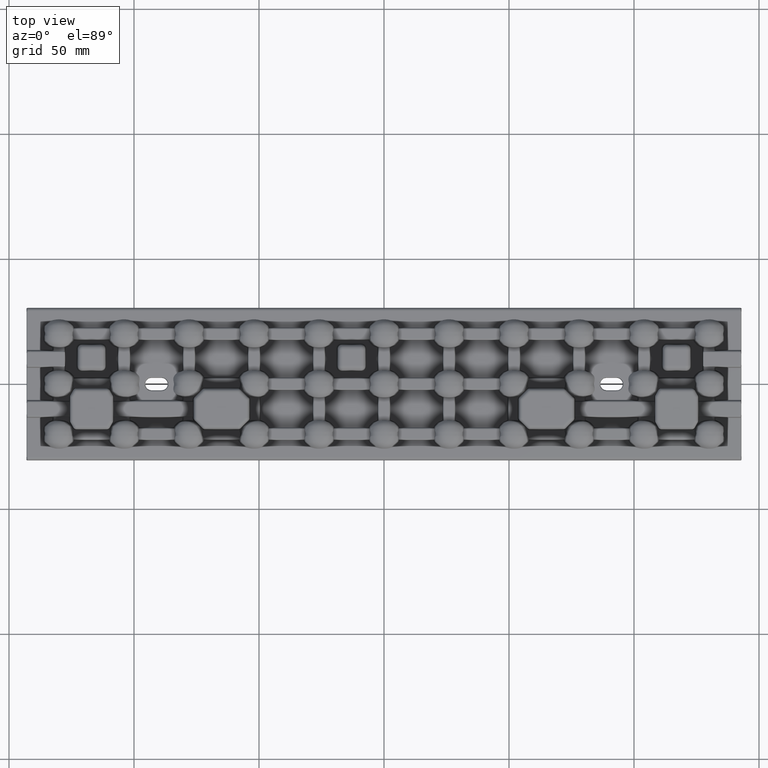
[diagram: clean part render]
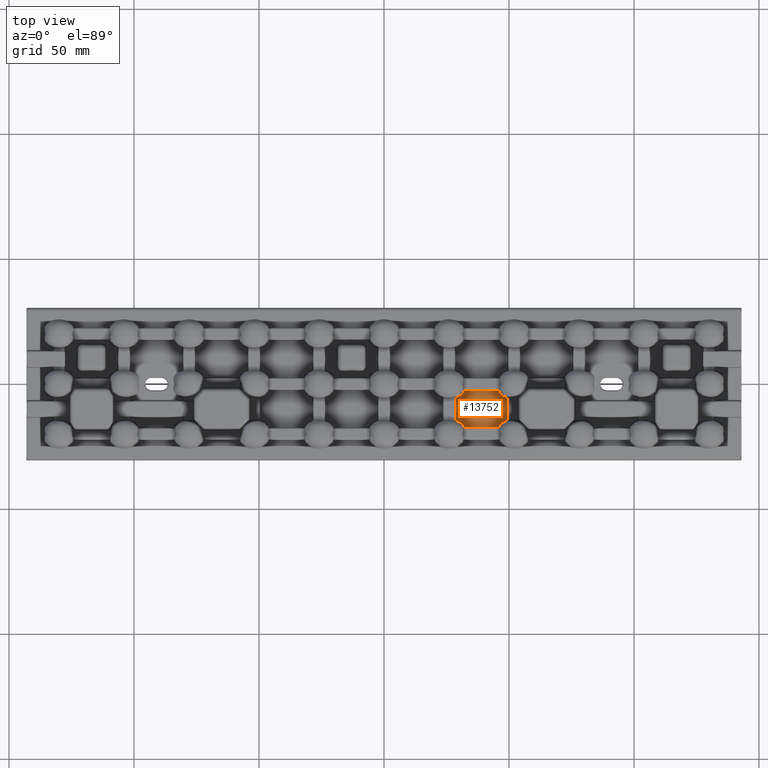
[diagram: same view with one face highlighted and labeled with its STEP entity id]
A machine part, top view. The second image highlights one B-rep face of the part: STEP entity #13752.
In plain terms, the highlighted planar face has unit normal (-0, 0, 1).
Its self-contained STEP definition (entity closure, byte-faithful):
#943 = CARTESIAN_POINT ( 'NONE',  ( 46.96272174898992100, -15.74780805109822200, 1.999999999999600500 ) ) ;
#1106 = CARTESIAN_POINT ( 'NONE',  ( 29.44640795026995400, -5.210388804376576000, 2.000000000000001800 ) ) ;
#1679 = CARTESIAN_POINT ( 'NONE',  ( 45.87528341715048400, -17.25857780629827700, 2.000000000000000000 ) ) ;
#2147 = CARTESIAN_POINT ( 'NONE',  ( 30.44316856757360800, -15.30358294954135300, 1.999999999999980900 ) ) ;
#2401 = CARTESIAN_POINT ( 'NONE',  ( 0.0000000000000000000, 0.0000000000000000000, 2.000000000000000000 ) ) ;
#3745 = VERTEX_POINT ( 'NONE', #67363 ) ;
#5307 = EDGE_CURVE ( 'NONE', #50214, #37184, #51232, .T. ) ;
#5354 = CARTESIAN_POINT ( 'NONE',  ( 47.87780439658122600, -4.883365081212643200, 2.000000000000000000 ) ) ;
#5367 = CARTESIAN_POINT ( 'NONE',  ( 32.12471664366874100, -17.25857780629828000, 2.000000000000000000 ) ) ;
#6238 = ORIENTED_EDGE ( 'NONE', *, *, #5307, .T. ) ;
#6331 = DIRECTION ( 'NONE',  ( 0.0000000000000000000, 1.000000000000000000, -0.0000000000000000000 ) ) ;
#6953 = CARTESIAN_POINT ( 'NONE',  ( 46.55524195587825200, -16.13689224558570200, 2.000000000000089700 ) ) ;
#7114 = CARTESIAN_POINT ( 'NONE',  ( 30.43502197326522600, -4.701466059788605100, 2.000000000000000000 ) ) ;
#8165 = CARTESIAN_POINT ( 'NONE',  ( 29.44716140462994100, -14.78983170404603500, 2.000000000000000400 ) ) ;
#8438 = DIRECTION ( 'NONE',  ( -0.0000000000000000000, 0.0000000000000000000, 1.000000000000000000 ) ) ;
#10321 = CARTESIAN_POINT ( 'NONE',  ( 47.55477784582136300, -17.25857780629827700, 2.000000000000000000 ) ) ;
#10680 = VERTEX_POINT ( 'NONE', #62667 ) ;
#11417 = CARTESIAN_POINT ( 'NONE',  ( 48.90016230161603500, -5.346573199022652800, 1.999999999999999600 ) ) ;
#12753 = CARTESIAN_POINT ( 'NONE',  ( 48.90037997864986600, -14.65335737083736900, 1.999999999999999600 ) ) ;
#13014 = CARTESIAN_POINT ( 'NONE',  ( 46.20530534545014900, -16.58140207693440300, 1.999999999999999100 ) ) ;
#13063 = B_SPLINE_CURVE_WITH_KNOTS ( 'NONE', 3,
 ( #20059, #31811, #26047, #68165, #32086, #74291, #38127, #2147, #44213, #8165, #50226, #14254 ),
 .UNSPECIFIED., .F., .F.,
 ( 4, 2, 2, 2, 2, 4 ),
 ( 3.469446951953614200E-018, 0.0005610143110296111200, 0.001122028622059218800, 0.002244057244118434100, 0.003366085866177651700, 0.004488114488236869000 ),
 .UNSPECIFIED. ) ;
#13178 = CARTESIAN_POINT ( 'NONE',  ( 31.03792449826436700, -4.251638829574886800, 1.999999999999083600 ) ) ;
#13752 = ADVANCED_FACE ( 'NONE', ( #27967 ), #38396, .T. ) ;
#13960 = B_SPLINE_CURVE_WITH_KNOTS ( 'NONE', 3,
 ( #54768, #12753, #66920, #30848, #73042, #36897, #943, #42984, #6953, #49012, #13014, #55018, #19096, #61061 ),
 .UNSPECIFIED., .F., .F.,
 ( 4, 2, 2, 2, 2, 2, 4 ),
 ( 2.032811707199135300E-016, 0.001111486230891934500, 0.002222972461783666100, 0.002778715577229528700, 0.003334458692675391200, 0.003890201808121254200, 0.004445944923567116300 ),
 .UNSPECIFIED. ) ;
#14254 = CARTESIAN_POINT ( 'NONE',  ( 28.74142219370183000, -14.53910680610578000, 2.000000000000000000 ) ) ;
#15221 = EDGE_CURVE ( 'NONE', #65714, #10680, #30409, .T. ) ;
#15279 = EDGE_CURVE ( 'NONE', #50214, #3745, #20020, .T. ) ;
#17308 = DIRECTION ( 'NONE',  ( -4.625929269271473100E-016, -1.000000000000000000, 0.0000000000000000000 ) ) ;
#17504 = CARTESIAN_POINT ( 'NONE',  ( 28.74142219370183000, -15.55477784582146200, 2.000000000000000000 ) ) ;
#19096 = CARTESIAN_POINT ( 'NONE',  ( 45.93665489542188100, -17.07872782598574400, 2.000000000000000900 ) ) ;
#19259 = CARTESIAN_POINT ( 'NONE',  ( 31.44507333174993800, -3.862765874825206900, 2.000000000000068800 ) ) ;
#20020 = B_SPLINE_CURVE_WITH_KNOTS ( 'NONE', 3,
 ( #67078, #60958, #1106, #43154, #7114, #49161, #13178, #55174, #19259, #61229, #25270, #67331, #31267, #73488 ),
 .UNSPECIFIED., .F., .F.,
 ( 4, 2, 2, 2, 2, 2, 4 ),
 ( 0.0000000000000000000, 0.001111915370787513800, 0.002223830741575027500, 0.002779788426968780300, 0.003335746112362525200, 0.003891703797756269300, 0.004447661483150013400 ),
 .UNSPECIFIED. ) ;
#20059 = CARTESIAN_POINT ( 'NONE',  ( 32.12471664366874100, -17.25857780629828000, 2.000000000000000000 ) ) ;
#20414 = ORIENTED_EDGE ( 'NONE', *, *, #15279, .F. ) ;
#23979 = EDGE_LOOP ( 'NONE', ( #26843, #27812, #49462, #46698, #20414, #6238, #76003, #41095 ) ) ;
#25270 = CARTESIAN_POINT ( 'NONE',  ( 31.79501201246363700, -3.418097587810474500, 1.999999999999997100 ) ) ;
#26047 = CARTESIAN_POINT ( 'NONE',  ( 31.98449328760512200, -16.90905175006062000, 2.000000000000000000 ) ) ;
#26843 = ORIENTED_EDGE ( 'NONE', *, *, #33110, .F. ) ;
#27812 = ORIENTED_EDGE ( 'NONE', *, *, #15221, .T. ) ;
#27967 = FACE_OUTER_BOUND ( 'NONE', #23979, .T. ) ;
#28343 = CARTESIAN_POINT ( 'NONE',  ( 28.74142219370183300, -5.460893193894262900, 2.000000000000000000 ) ) ;
#28537 = VECTOR ( 'NONE', #6331, 1000.000000000000000 ) ;
#29279 = CARTESIAN_POINT ( 'NONE',  ( 46.54772348950065500, -3.854904397538690700, 2.000000000000021800 ) ) ;
#30409 = LINE ( 'NONE', #66545, #28537 ) ;
#30848 = CARTESIAN_POINT ( 'NONE',  ( 47.88620459317840500, -15.11223766319933000, 2.000000000000002200 ) ) ;
#31004 = VERTEX_POINT ( 'NONE', #5367 ) ;
#31267 = CARTESIAN_POINT ( 'NONE',  ( 32.06336189217319800, -2.921223152124729600, 2.000000000000001300 ) ) ;
#31811 = CARTESIAN_POINT ( 'NONE',  ( 32.06343828802858600, -17.07900072699939300, 2.000000000000000000 ) ) ;
#32086 = CARTESIAN_POINT ( 'NONE',  ( 31.68766890327621200, -16.43025438768452400, 2.000000000000015100 ) ) ;
#33110 = EDGE_CURVE ( 'NONE', #65714, #35140, #13960, .T. ) ;
#33172 = EDGE_CURVE ( 'NONE', #36255, #3745, #49504, .T. ) ;
#33508 = VECTOR ( 'NONE', #49517, 1000.000000000000000 ) ;
#35140 = VERTEX_POINT ( 'NONE', #1679 ) ;
#35198 = VECTOR ( 'NONE', #17308, 1000.000000000000000 ) ;
#35280 = CARTESIAN_POINT ( 'NONE',  ( 46.95393234875406600, -4.244699303047328300, 2.000000000000605300 ) ) ;
#36255 = VERTEX_POINT ( 'NONE', #47895 ) ;
#36897 = CARTESIAN_POINT ( 'NONE',  ( 47.11062102002283300, -15.62834294185146400, 2.000000000000000400 ) ) ;
#37022 = CARTESIAN_POINT ( 'NONE',  ( 49.25857780629813500, -14.53910680023646800, 2.000000000000000000 ) ) ;
#37184 = VERTEX_POINT ( 'NONE', #70747 ) ;
#38127 = CARTESIAN_POINT ( 'NONE',  ( 31.05017700651645600, -15.74599484345642300, 1.999999999999980900 ) ) ;
#38396 = PLANE ( 'NONE',  #68972 ) ;
#41095 = ORIENTED_EDGE ( 'NONE', *, *, #41181, .T. ) ;
#41181 = EDGE_CURVE ( 'NONE', #31004, #35140, #67965, .T. ) ;
#41372 = CARTESIAN_POINT ( 'NONE',  ( 47.55062361644000600, -4.692317974367488100, 2.000000000000001300 ) ) ;
#42984 = CARTESIAN_POINT ( 'NONE',  ( 46.68537160262486900, -16.00192282275653400, 1.999999999999600500 ) ) ;
#43154 = CARTESIAN_POINT ( 'NONE',  ( 30.11403311489205900, -4.887638794906070700, 2.000000000000001300 ) ) ;
#44213 = CARTESIAN_POINT ( 'NONE',  ( 30.11778976680394500, -15.11432198692051700, 1.999999999999999600 ) ) ;
#46361 = DIRECTION ( 'NONE',  ( 1.000000000000000000, 3.304235192336801100E-016, 0.0000000000000000000 ) ) ;
#46698 = ORIENTED_EDGE ( 'NONE', *, *, #33172, .T. ) ;
#47429 = CARTESIAN_POINT ( 'NONE',  ( 48.55163707640303300, -5.209766551515494700, 2.000000000000000000 ) ) ;
#47895 = CARTESIAN_POINT ( 'NONE',  ( 45.87528341715052700, -2.741422193701768400, 2.000000000000000000 ) ) ;
#48137 = VECTOR ( 'NONE', #46361, 1000.000000000000000 ) ;
#49012 = CARTESIAN_POINT ( 'NONE',  ( 46.31559820724572800, -16.42591860606161400, 2.000000000000089700 ) ) ;
#49161 = CARTESIAN_POINT ( 'NONE',  ( 30.89008342987805000, -4.371114041887580900, 2.000000000000000000 ) ) ;
#49462 = ORIENTED_EDGE ( 'NONE', *, *, #76485, .F. ) ;
#49504 = LINE ( 'NONE', #73598, #33508 ) ;
#49517 = DIRECTION ( 'NONE',  ( -1.000000000000000000, -2.271661694731551500E-016, 0.0000000000000000000 ) ) ;
#50214 = VERTEX_POINT ( 'NONE', #28343 ) ;
#50226 = CARTESIAN_POINT ( 'NONE',  ( 29.09958599592891200, -14.65334652589107700, 1.999999999999999600 ) ) ;
#50469 = DIRECTION ( 'NONE',  ( 1.000000000000000000, 0.0000000000000000000, 0.0000000000000000000 ) ) ;
#51099 = EDGE_CURVE ( 'NONE', #31004, #37184, #13063, .T. ) ;
#51232 = LINE ( 'NONE', #17504, #35198 ) ;
#53442 = CARTESIAN_POINT ( 'NONE',  ( 49.25857780629813500, -5.460893199763998700, 2.000000000000000000 ) ) ;
#54768 = CARTESIAN_POINT ( 'NONE',  ( 49.25857780629813500, -14.53910680023646800, 2.000000000000000000 ) ) ;
#55018 = CARTESIAN_POINT ( 'NONE',  ( 46.01599760934014700, -16.90785414885551300, 1.999999999999999600 ) ) ;
#55174 = CARTESIAN_POINT ( 'NONE',  ( 31.31500584046128900, -3.997692294059413500, 1.999999999999082300 ) ) ;
#59213 = CARTESIAN_POINT ( 'NONE',  ( 45.99803419202354600, -3.101145066053589100, 1.999999999999999100 ) ) ;
#60958 = CARTESIAN_POINT ( 'NONE',  ( 29.09960658913129800, -5.346646905713011900, 2.000000000000000000 ) ) ;
#61061 = CARTESIAN_POINT ( 'NONE',  ( 45.87528341715048400, -17.25857780629827700, 2.000000000000000000 ) ) ;
#61229 = CARTESIAN_POINT ( 'NONE',  ( 31.68470931873421000, -3.573672134980274300, 2.000000000000068800 ) ) ;
#62667 = CARTESIAN_POINT ( 'NONE',  ( 49.25857780629813500, -5.460893199763998700, 2.000000000000000000 ) ) ;
#65309 = CARTESIAN_POINT ( 'NONE',  ( 46.18921699528666400, -3.419848055604581400, 2.000000000000021300 ) ) ;
#65714 = VERTEX_POINT ( 'NONE', #37022 ) ;
#66545 = CARTESIAN_POINT ( 'NONE',  ( 49.25857780629813500, -4.445222154178569700, 2.000000000000000000 ) ) ;
#66920 = CARTESIAN_POINT ( 'NONE',  ( 48.55362577035867800, -14.78960352435137600, 2.000000000000002200 ) ) ;
#67078 = CARTESIAN_POINT ( 'NONE',  ( 28.74142219370183300, -5.460893193894262900, 2.000000000000000000 ) ) ;
#67331 = CARTESIAN_POINT ( 'NONE',  ( 31.98407401550330000, -3.091975499607257500, 1.999999999999996700 ) ) ;
#67363 = CARTESIAN_POINT ( 'NONE',  ( 32.12471664366875500, -2.741422193701771500, 2.000000000000000000 ) ) ;
#67965 = LINE ( 'NONE', #10321, #48137 ) ;
#68165 = CARTESIAN_POINT ( 'NONE',  ( 31.79711260354870100, -16.58522585288053400, 2.000000000000000400 ) ) ;
#68972 = AXIS2_PLACEMENT_3D ( 'NONE', #2401, #8438, #50469 ) ;
#70747 = CARTESIAN_POINT ( 'NONE',  ( 28.74142219370183000, -14.53910680610578000, 2.000000000000000000 ) ) ;
#71443 = CARTESIAN_POINT ( 'NONE',  ( 46.67899717475160100, -3.991644632034957200, 2.000000000000605300 ) ) ;
#73042 = CARTESIAN_POINT ( 'NONE',  ( 47.56537355590017300, -15.29831029551948700, 2.000000000000000000 ) ) ;
#73488 = CARTESIAN_POINT ( 'NONE',  ( 32.12471664366875500, -2.741422193701771500, 2.000000000000000000 ) ) ;
#73598 = CARTESIAN_POINT ( 'NONE',  ( 30.44522215417847700, -2.741422193701772000, 2.000000000000000000 ) ) ;
#74291 = CARTESIAN_POINT ( 'NONE',  ( 31.32786717274977700, -15.99513840678394600, 2.000000000000014700 ) ) ;
#74408 = B_SPLINE_CURVE_WITH_KNOTS ( 'NONE', 3,
 ( #77281, #59213, #65309, #29279, #71443, #35280, #77541, #41372, #5354, #47429, #11417, #53442 ),
 .UNSPECIFIED., .F., .F.,
 ( 4, 2, 2, 2, 2, 4 ),
 ( 3.035766082959412000E-018, 0.001114944841972052100, 0.001672417262958076600, 0.002229889683944101100, 0.003344834525916150100, 0.004459779367888198700 ),
 .UNSPECIFIED. ) ;
#76003 = ORIENTED_EDGE ( 'NONE', *, *, #51099, .F. ) ;
#76485 = EDGE_CURVE ( 'NONE', #36255, #10680, #74408, .T. ) ;
#77281 = CARTESIAN_POINT ( 'NONE',  ( 45.87528341715052700, -2.741422193701768400, 2.000000000000000000 ) ) ;
#77541 = CARTESIAN_POINT ( 'NONE',  ( 47.09860470962281200, -4.362226130688417100, 2.000000000000000900 ) ) ;